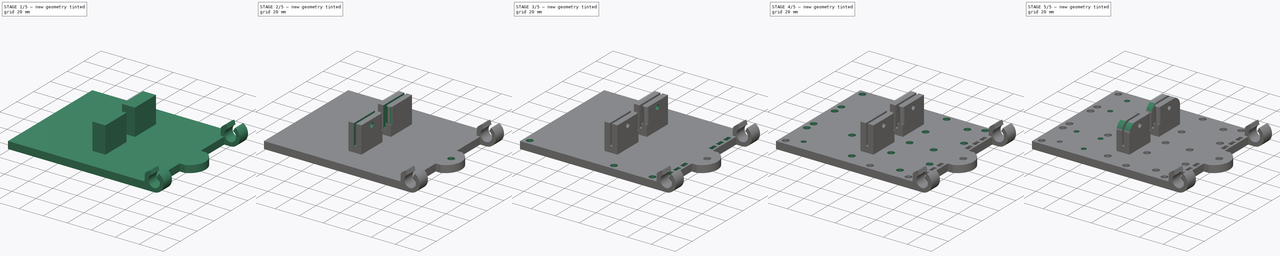
[diagram: build sequence overview — one tinted view per stage of 5, left to right]
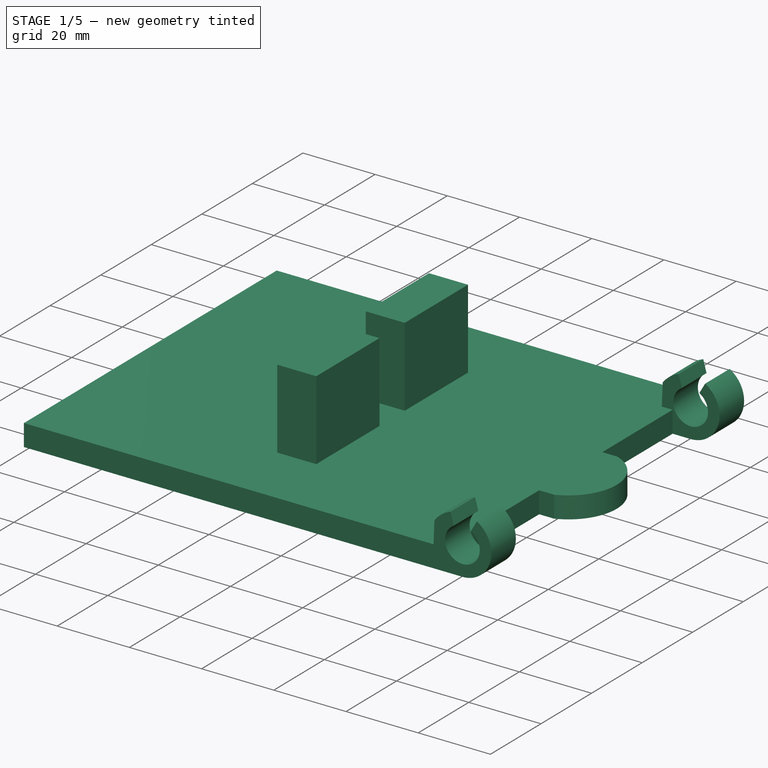
[diagram: stage 1 of 5 — iso view after this stage's code; geometry added in this stage tinted green]
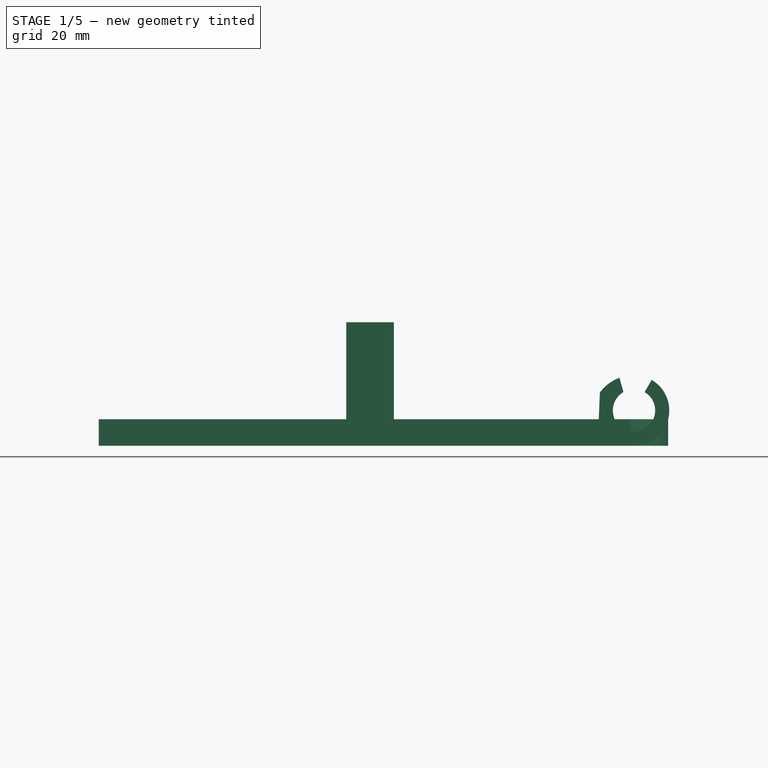
[diagram: stage 1 of 5 — front view after this stage's code; geometry added in this stage tinted green]
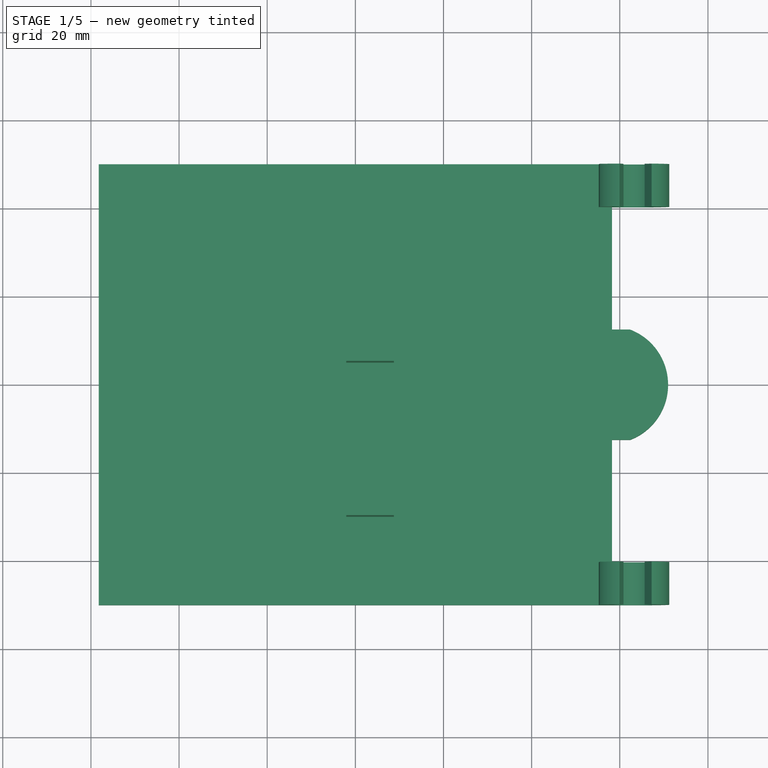
[diagram: stage 1 of 5 — top view after this stage's code; geometry added in this stage tinted green]
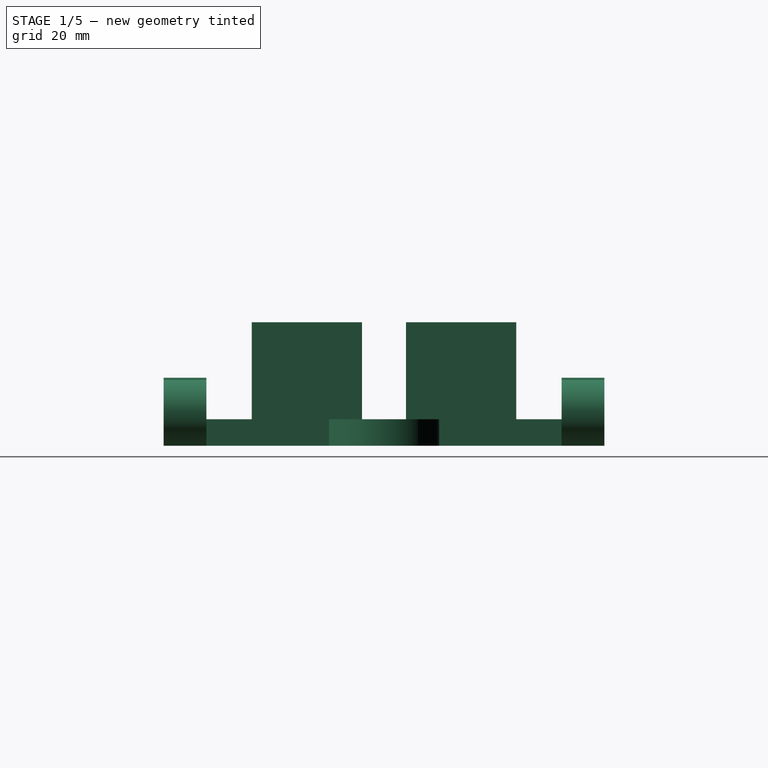
[diagram: stage 1 of 5 — right view after this stage's code; geometry added in this stage tinted green]
FCSTD DOCUMENT
Label: X_Carriage
objects: Sketcher::SketchObject×15, PartDesign::Pocket×12, PartDesign::Mirrored×11, PartDesign::LinearPattern×5, PartDesign::MultiTransform×4, PartDesign::Pad×3, Part::Feature×1
note: 66 computed .brp shape members not serialized (recipe doc carries the construction recipe); baked Part::Feature solids carry a one-line shape summary decoded from their .brp

FEATURE [Sketcher::SketchObject] Sketch
  sketch-geometry (9):
    g0: LineSegment StartX=-58.23 StartY=-50 StartZ=0 EndX=58.23 EndY=-50 EndZ=0
    g1: LineSegment StartX=58.23 StartY=-50 StartZ=0 EndX=58.23 EndY=-12.5 EndZ=0
    g2: LineSegment StartX=58.23 StartY=50 StartZ=0 EndX=-58.23 EndY=50 EndZ=0
    g3: LineSegment StartX=-58.23 StartY=50 StartZ=0 EndX=-58.23 EndY=-50 EndZ=0
    g4: GeomPoint [constr] X=0 Y=0 Z=0
    g5: LineSegment StartX=58.23 StartY=12.5 StartZ=0 EndX=62.345 EndY=12.5 EndZ=0
    g6: LineSegment StartX=62.345 StartY=-12.5 StartZ=0 EndX=58.23 EndY=-12.5 EndZ=0
    g7: ArcOfCircle CenterX=57.584 CenterY=0 CenterZ=0 NormalX=0 NormalY=0 NormalZ=1 Radius=13.376 StartAngle=5.07631 EndAngle=7.49006
    g8: LineSegment StartX=58.23 StartY=12.5 StartZ=0 EndX=58.23 EndY=50 EndZ=0
  constraints (24):
    c: Coincident(g0,g1)
    c: Coincident(g8,g2)
    c: Coincident(g2,g3)
    c: Coincident(g3,g0)
    c: Horizontal(g0)
    c: Horizontal(g2)
    c: Vertical(g1)
    c: Vertical(g3)
    c: Symmetric(g0,g8,g4)
    c: Coincident(g4,g-1)
    c: DistanceY(g3) = -100
    c: Horizontal(g5)
    c: Horizontal(g6)
    c: PointOnObject(g7,g-1)
    c: Coincident(g7,g5)
    c: Coincident(g7,g6)
    c: Coincident(g1,g6)
    c: Coincident(g8,g5)
    c: Tangent(g1,g8)
    c: DistanceX(g0) = 116.46
    c: DistanceX(g6) = -4.115
    c: Equal(g6,g5)
    c: Radius(g7) = 13.376
    c: DistanceY(g1,g5) = 25
FEATURE [PartDesign::Pad] Pad
  Length = 6
  Length2 = 100
  Sketch = -> Sketch
  Type = 0
FEATURE [Sketcher::SketchObject] Sketch001
  ExternalGeometry = -> [Pad]
  Placement = pos=(0,-50,0) rot=(1,0,0;1.5708rad)
  Support = -> Pad [Face2]
  sketch-geometry (10):
    g0: LineSegment StartX=55.4856 StartY=12.098 StartZ=0 EndX=54.9785 EndY=0 EndZ=0
    g1: LineSegment StartX=54.9785 StartY=0 StartZ=0 EndX=63.23 EndY=0 EndZ=0
    g2: ArcOfCircle CenterX=63.23 CenterY=8 CenterZ=0 NormalX=0 NormalY=0 NormalZ=1 Radius=8 StartAngle=4.71239 EndAngle=7.33038
    g3: LineSegment StartX=67.23 StartY=14.9282 StartZ=0 EndX=65.63 EndY=12.1569 EndZ=0
    g4: ArcOfCircle CenterX=63.23 CenterY=8 CenterZ=0 NormalX=0 NormalY=0 NormalZ=1 Radius=4.8 StartAngle=2.0944 EndAngle=7.33038
    g5: ArcOfCircle CenterX=63.2324 CenterY=6.35907 CenterZ=0 NormalX=0 NormalY=0 NormalZ=1 Radius=9.641 StartAngle=1.92097 EndAngle=2.504
    g6: LineSegment StartX=59.925 StartY=15.415 StartZ=0 EndX=60.83 EndY=12.1569 EndZ=0
    g7: LineSegment [constr] StartX=60.83 StartY=12.1569 StartZ=0 EndX=63.23 EndY=8 EndZ=0
    g8: LineSegment [constr] StartX=63.23 StartY=8 StartZ=0 EndX=65.63 EndY=12.1569 EndZ=0
    g9: GeomPoint [constr] X=55.23 Y=6 Z=0
  constraints (28):
    c: Tangent(g1,g2)
    c: Perpendicular(g2,g3)
    c: Radius(g2) = 8
    c: Coincident(g4,g2)
    c: Radius(g4) = 4.8
    c: Coincident(g5,g6)
    c: PointOnObject(g7,g4)
    c: Radius(g5) = 9.641
    c: Coincident(g5,g0)
    c: Coincident(g7,g2)
    c: Coincident(g7,g8)
    c: Coincident(g4,g6)
    c: Coincident(g4,g3)
    c: Coincident(g8,g3)
    c: DistanceY(g5,g0) = -15.415
    c: PointOnObject(g0,g-4)
    c: DistanceX(g1,g-4) = -121.46
    c: DistanceX(g7) = 2.4
    c: DistanceX(g8) = 2.4
    c: Horizontal(g1)
    c: Coincident(g1,g0)
    c: Angle(g0,g-4) = 1.61268
    c: PointOnObject(g9,g0)
    c: PointOnObject(g9,g-3)
    c: DistanceX(g9,g1) = 8
    c: DistanceY(g0,g9) = -6.098
    c: DistanceX(g5,g2) = 7.305
    c: Coincident(g4,g7)
FEATURE [PartDesign::Pad] Pad001
  Length = 9.71
  Length2 = 100
  Reversed = true
  Sketch = -> Sketch001
  Type = 0
FEATURE [PartDesign::Mirrored] Mirrored
  Originals = -> [Pad001]
  StdMirrorPlane = XZ
FEATURE [Sketcher::SketchObject] Sketch002
  ExternalGeometry = -> [Mirrored]
  Placement = pos=(0,0,6) rot=(0,0,1;0rad)
  Support = -> Mirrored [Face5]
  sketch-geometry (4):
    g0: LineSegment StartX=-2.055 StartY=-30 StartZ=0 EndX=8.745 EndY=-30 EndZ=0
    g1: LineSegment StartX=8.745 StartY=-30 StartZ=0 EndX=8.745 EndY=-5 EndZ=0
    g2: LineSegment StartX=8.745 StartY=-5 StartZ=0 EndX=-2.055 EndY=-5 EndZ=0
    g3: LineSegment StartX=-2.055 StartY=-5 StartZ=0 EndX=-2.055 EndY=-30 EndZ=0
  constraints (12):
    c: Coincident(g0,g1)
    c: Coincident(g1,g2)
    c: Coincident(g2,g3)
    c: Coincident(g3,g0)
    c: Horizontal(g0)
    c: Horizontal(g2)
    c: Vertical(g1)
    c: Vertical(g3)
    c: DistanceY(g1) = 25
    c: DistanceX(g2) = -10.8
    c: DistanceY(g0,g-3) = -20
    c: DistanceX(g0,g-3) = -56.175
FEATURE [PartDesign::Pad] Pad002
  Length = 22
  Length2 = 100
  Sketch = -> Sketch002
  Type = 0
FEATURE [PartDesign::Mirrored] Mirrored001
  Originals = -> [Pad002]
  StdMirrorPlane = XZ
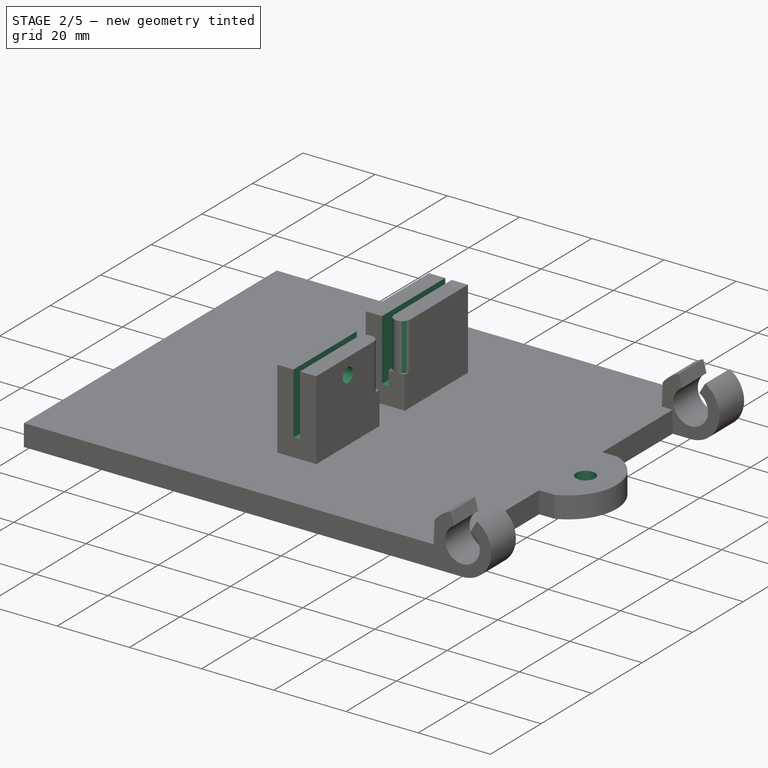
[diagram: stage 2 of 5 — iso view after this stage's code; geometry added in this stage tinted green]
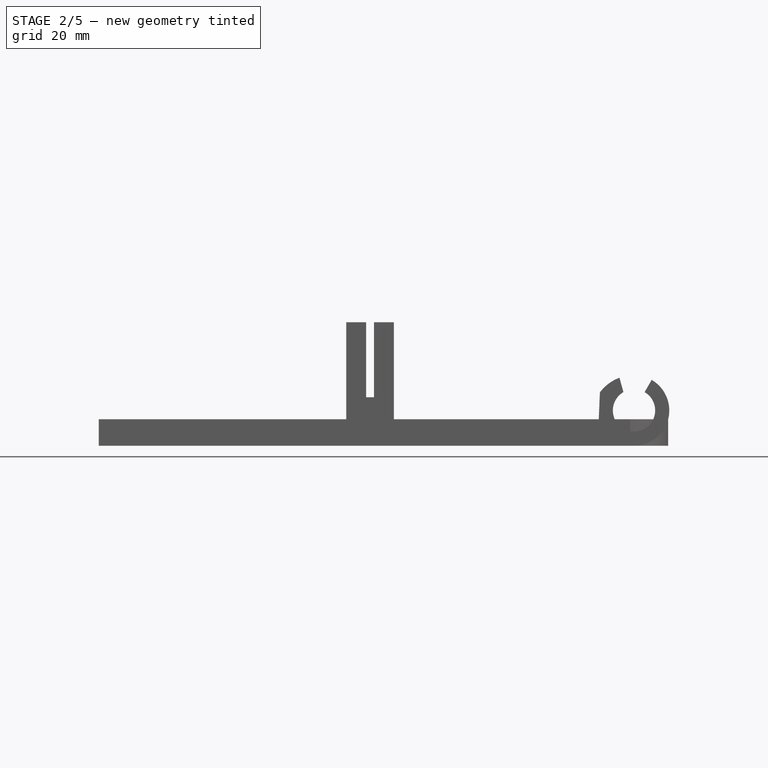
[diagram: stage 2 of 5 — front view after this stage's code; geometry added in this stage tinted green]
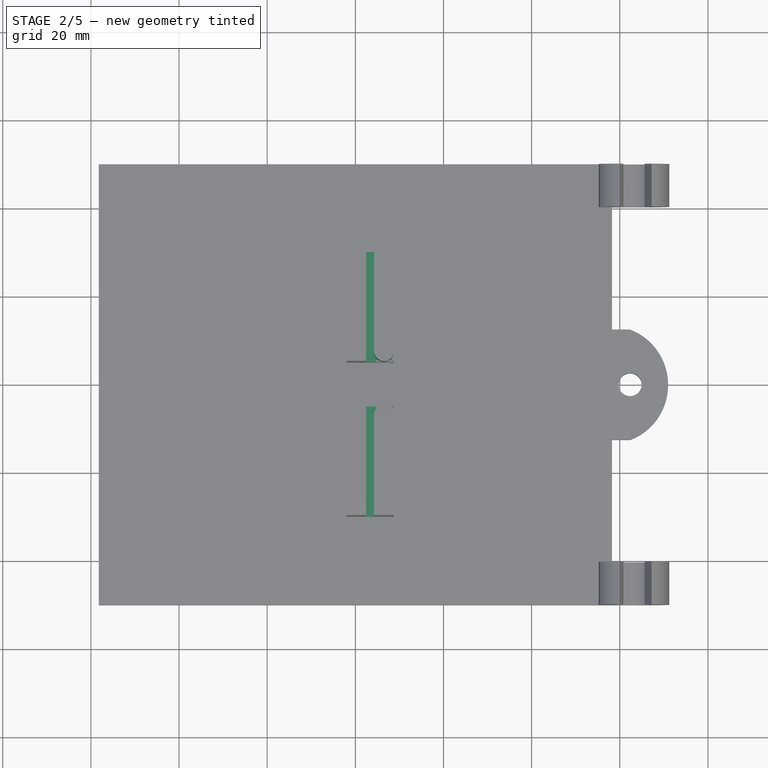
[diagram: stage 2 of 5 — top view after this stage's code; geometry added in this stage tinted green]
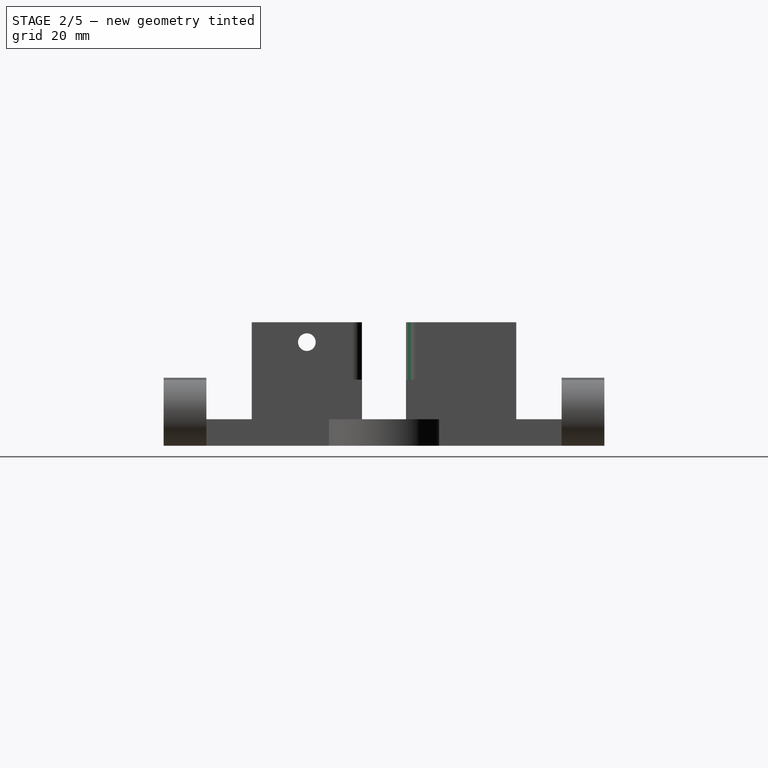
[diagram: stage 2 of 5 — right view after this stage's code; geometry added in this stage tinted green]
FEATURE [Sketcher::SketchObject] Sketch011  label="Sketch003"
  ExternalGeometry = -> [Mirrored001]
  Placement = pos=(0,-30,0) rot=(1,0,0;1.5708rad)
  Support = -> Mirrored001 [Face25]
  sketch-geometry (4):
    g0: LineSegment StartX=2.445 StartY=29 StartZ=0 EndX=4.245 EndY=29 EndZ=0
    g1: LineSegment StartX=4.245 StartY=29 StartZ=0 EndX=4.245 EndY=11 EndZ=0
    g2: LineSegment StartX=4.245 StartY=11 StartZ=0 EndX=2.445 EndY=11 EndZ=0
    g3: LineSegment StartX=2.445 StartY=11 StartZ=0 EndX=2.445 EndY=29 EndZ=0
  constraints (12):
    c: Coincident(g0,g1)
    c: Coincident(g1,g2)
    c: Coincident(g2,g3)
    c: Coincident(g3,g0)
    c: Horizontal(g0)
    c: Horizontal(g2)
    c: Vertical(g1)
    c: Vertical(g3)
    c: DistanceX(g0) = 1.8
    c: DistanceY(g2,g-4) = -5
    c: DistanceX(g-4,g0) = 4.5
    c: DistanceY(g0,g-3) = -1
FEATURE [PartDesign::Pocket] Pocket
  Length = 5
  Sketch = -> Sketch011
  Type = 1
FEATURE [Sketcher::SketchObject] Sketch012  label="Sketch004"
  ExternalGeometry = -> [Pocket]
  Placement = pos=(0,0,28) rot=(0,0,1;0rad)
  Support = -> Pocket [Face47]
  sketch-geometry (6):
    g0: LineSegment StartX=3.245 StartY=-4 StartZ=0 EndX=9.745 EndY=-4 EndZ=0
    g1: LineSegment StartX=9.745 StartY=-4 StartZ=0 EndX=9.745 EndY=-7.25 EndZ=0
    g2: LineSegment StartX=9.745 StartY=-7.25 StartZ=0 EndX=8.745 EndY=-7.25 EndZ=0
    g3: LineSegment StartX=3.245 StartY=-7.25 StartZ=0 EndX=3.245 EndY=-4 EndZ=0
    g4: ArcOfCircle CenterX=6.495 CenterY=-7.25 CenterZ=0 NormalX=0 NormalY=0 NormalZ=1 Radius=2.25 StartAngle=0 EndAngle=3.14159
    g5: LineSegment StartX=4.245 StartY=-7.25 StartZ=0 EndX=3.245 EndY=-7.25 EndZ=0
  constraints (18):
    c: Coincident(g0,g1)
    c: Coincident(g1,g2)
    c: Coincident(g5,g3)
    c: Coincident(g3,g0)
    c: Horizontal(g0)
    c: Horizontal(g2)
    c: Vertical(g1)
    c: Vertical(g3)
    c: Coincident(g2,g4)
    c: Coincident(g5,g4)
    c: Tangent(g2,g5)
    c: Perpendicular(g4,g5)
    c: PointOnObject(g4,g-3)
    c: PointOnObject(g2,g-5)
    c: Tangent(g4,g-4)
    c: Equal(g5,g2)
    c: DistanceY(g0,g-5) = -1
    c: DistanceX(g0,g-4) = 1
FEATURE [PartDesign::Pocket] Pocket001
  Length = 13
  Sketch = -> Sketch012
  Type = 0
FEATURE [PartDesign::Mirrored] Mirrored002
  Originals = -> [Pocket001]
  StdMirrorPlane = XZ
FEATURE [Sketcher::SketchObject] Sketch006  label="Sketch005"
  ExternalGeometry = -> [Mirrored002]
  Placement = pos=(0,0,6) rot=(0,0,1;0rad)
  Support = -> Mirrored002 [Face5]
  sketch-geometry (2):
    g0: Circle CenterX=62.345 CenterY=0 CenterZ=0 NormalX=0 NormalY=0 NormalZ=1 Radius=2.6
    g1: LineSegment [constr] StartX=62.345 StartY=0 StartZ=0 EndX=62.345 EndY=-12.5 EndZ=0
  constraints (5):
    c: Radius(g0) = 2.6
    c: PointOnObject(g0,g-1)
    c: Coincident(g1,g0)
    c: Coincident(g1,g-3)
    c: Vertical(g1)
FEATURE [PartDesign::Pocket] Pocket002
  Length = 5
  Sketch = -> Sketch006
  Type = 1
FEATURE [Sketcher::SketchObject] Sketch007  label="Sketch006"
  ExternalGeometry = -> [Pocket002]
  Placement = pos=(8.745,0,0) rot=(0.57735,0.57735,0.57735;2.0944rad)
  Support = -> Pocket002 [Face27]
  sketch-geometry (2):
    g0: LineSegment [constr] StartX=-17.5 StartY=6 StartZ=0 EndX=-17.5 EndY=23.5 EndZ=0
    g1: Circle CenterX=-17.5 CenterY=23.5 CenterZ=0 NormalX=0 NormalY=0 NormalZ=1 Radius=2
  constraints (5):
    c: Vertical(g0)
    c: Coincident(g1,g0)
    c: Radius(g1) = 2
    c: Symmetric(g-3,g-3,g0)
    c: DistanceY(g0) = 17.5
FEATURE [PartDesign::Pocket] Pocket003
  Length = 5
  Sketch = -> Sketch007
  Type = 1
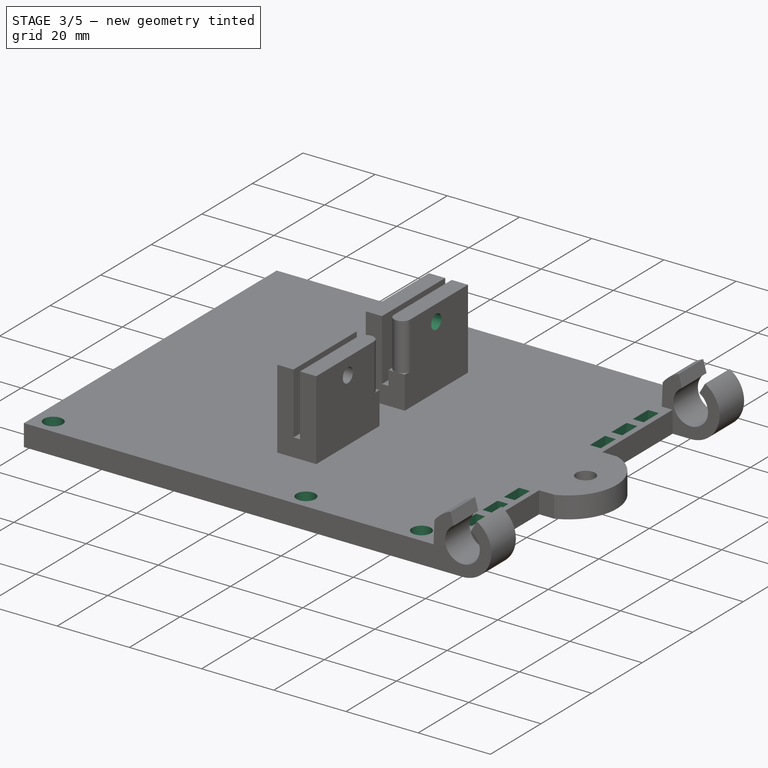
[diagram: stage 3 of 5 — iso view after this stage's code; geometry added in this stage tinted green]
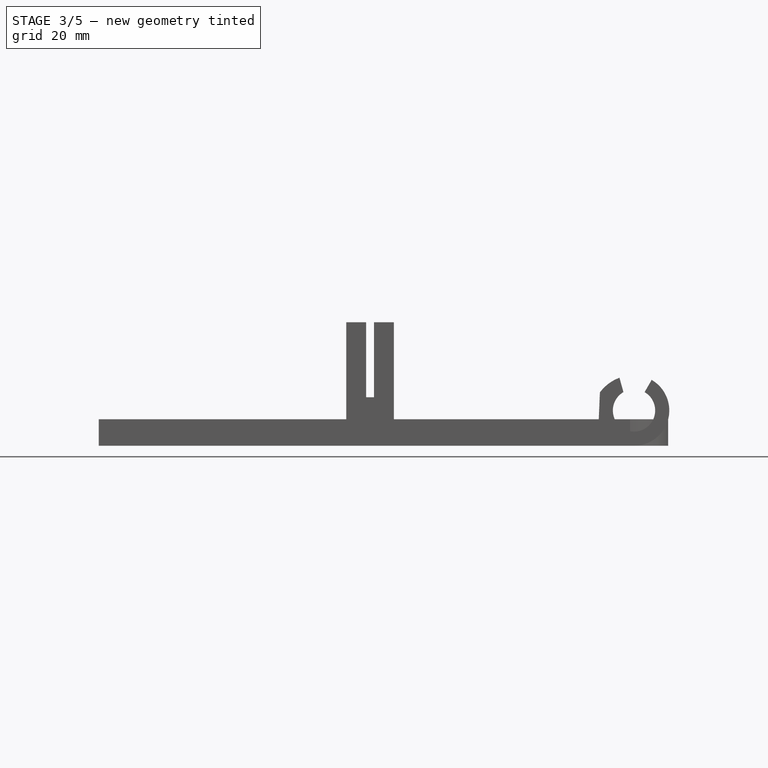
[diagram: stage 3 of 5 — front view after this stage's code; geometry added in this stage tinted green]
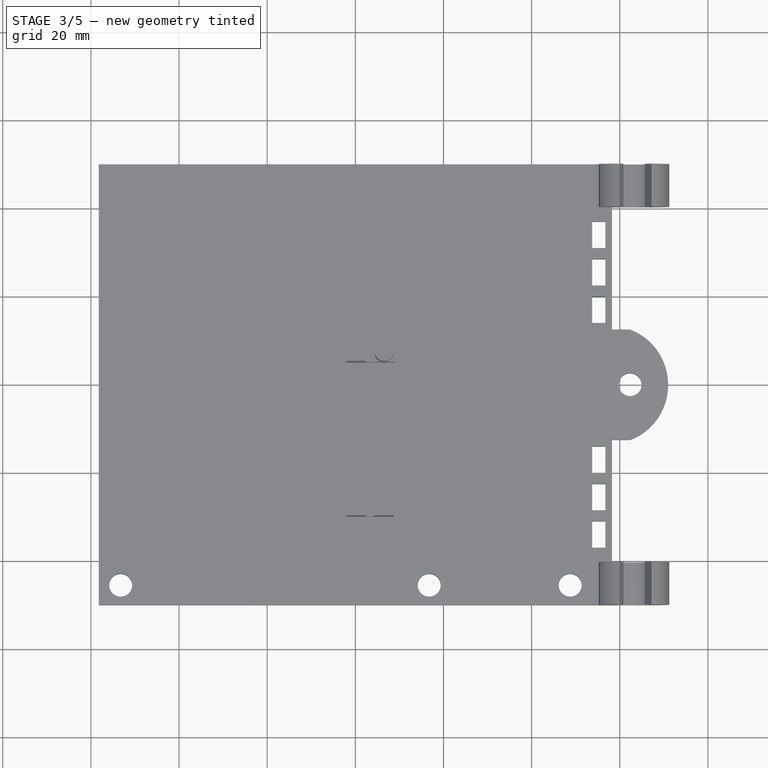
[diagram: stage 3 of 5 — top view after this stage's code; geometry added in this stage tinted green]
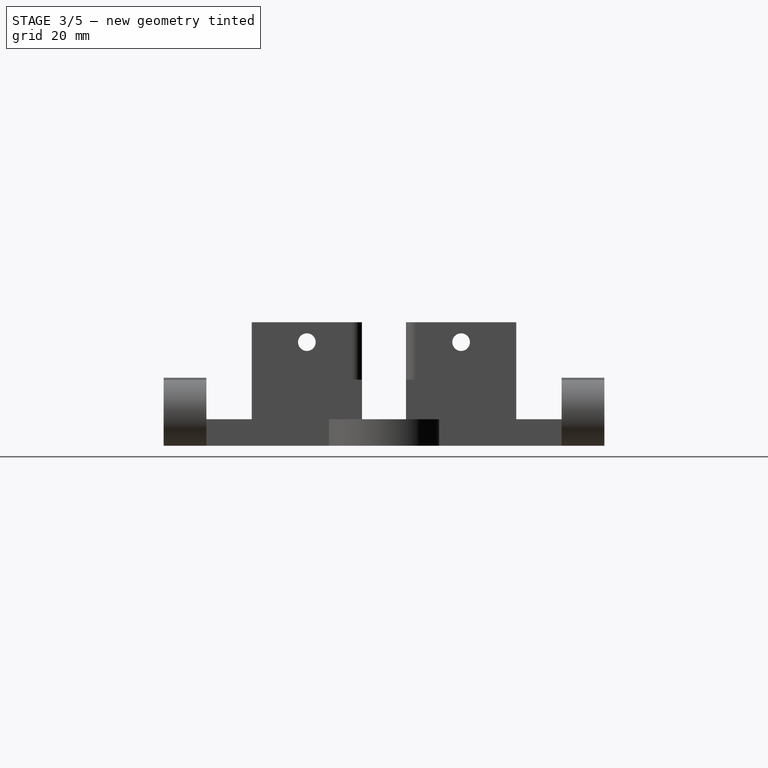
[diagram: stage 3 of 5 — right view after this stage's code; geometry added in this stage tinted green]
FEATURE [PartDesign::Mirrored] Mirrored003
  Originals = -> [Pocket003]
  StdMirrorPlane = XZ
FEATURE [Sketcher::SketchObject] Sketch013  label="Sketch007"
  ExternalGeometry = -> [Mirrored003]
  Placement = pos=(-2.055,0,0) rot=(0.57735,-0.57735,-0.57735;2.0944rad)
  Support = -> Mirrored003 [Face24]
  sketch-geometry (1):
    g0: Circle CenterX=17.5 CenterY=23.5 CenterZ=0 NormalX=0 NormalY=0 NormalZ=1 Radius=2.6
  constraints (2):
    c: Coincident(g0,g-3)
    c: Radius(g0) = 2.6
FEATURE [PartDesign::Pocket] Pocket004
  Length = 5
  Sketch = -> Sketch013
  Type = 0
FEATURE [PartDesign::Mirrored] Mirrored004
  Originals = -> [Pocket004]
  StdMirrorPlane = XZ
FEATURE [Sketcher::SketchObject] Sketch014  label="Sketch008"
  ExternalGeometry = -> [Mirrored004]
  Placement = pos=(0,0,6) rot=(0,0,1;0rad)
  Support = -> Mirrored004 [Face5]
  sketch-geometry (4):
    g0: LineSegment StartX=53.73 StartY=-14 StartZ=0 EndX=56.73 EndY=-14 EndZ=0
    g1: LineSegment StartX=56.73 StartY=-14 StartZ=0 EndX=56.73 EndY=-20 EndZ=0
    g2: LineSegment StartX=56.73 StartY=-20 StartZ=0 EndX=53.73 EndY=-20 EndZ=0
    g3: LineSegment StartX=53.73 StartY=-20 StartZ=0 EndX=53.73 EndY=-14 EndZ=0
  constraints (12):
    c: Coincident(g0,g1)
    c: Coincident(g1,g2)
    c: Coincident(g2,g3)
    c: Coincident(g3,g0)
    c: Horizontal(g0)
    c: Horizontal(g2)
    c: Vertical(g1)
    c: Vertical(g3)
    c: DistanceY(g1) = -6
    c: DistanceX(g0) = 3
    c: DistanceX(g0,g-3) = 1.5
    c: DistanceY(g0,g-3) = 1.5
FEATURE [PartDesign::Pocket] Pocket005
  Length = 5
  Sketch = -> Sketch014
  Type = 1
FEATURE [PartDesign::LinearPattern] LinearPattern
  Direction = -> Pocket005 [Edge41]
  Length = 17
  Occurrences = 3
  Reversed = true
FEATURE [PartDesign::Mirrored] Mirrored005
  StdMirrorPlane = XZ
FEATURE [PartDesign::MultiTransform] MultiTransform
  Originals = -> [Pocket005]
  Transformations = -> [LinearPattern,Mirrored005]
FEATURE [Sketcher::SketchObject] Sketch015  label="Sketch009"
  ExternalGeometry = -> [MultiTransform]
  Placement = pos=(0,0,6) rot=(0,0,1;0rad)
  Support = -> MultiTransform [Face5]
  sketch-geometry (5):
    g0: LineSegment [constr] StartX=-53.255 StartY=-45.5 StartZ=0 EndX=16.745 EndY=-45.5 EndZ=0
    g1: LineSegment [constr] StartX=16.745 StartY=-45.5 StartZ=0 EndX=48.745 EndY=-45.5 EndZ=0
    g2: Circle CenterX=-53.255 CenterY=-45.5 CenterZ=0 NormalX=0 NormalY=0 NormalZ=1 Radius=2.6
    g3: Circle CenterX=16.745 CenterY=-45.5 CenterZ=0 NormalX=0 NormalY=0 NormalZ=1 Radius=2.6
    g4: Circle CenterX=48.745 CenterY=-45.5 CenterZ=0 NormalX=0 NormalY=0 NormalZ=1 Radius=2.6
  constraints (13):
    c: Horizontal(g0)
    c: Coincident(g0,g1)
    c: Horizontal(g1)
    c: DistanceX(g0) = 70
    c: DistanceX(g1) = 32
    c: DistanceY(g-3,g0) = 4.5
    c: DistanceX(g-3,g0) = 4.975
    c: Coincident(g2,g0)
    c: Coincident(g3,g0)
    c: Coincident(g4,g1)
    c: Equal(g2,g3)
    c: Equal(g3,g4)
    c: Radius(g3) = 2.6
FEATURE [PartDesign::Pocket] Pocket006
  Length = 5
  Sketch = -> Sketch015
  Type = 1
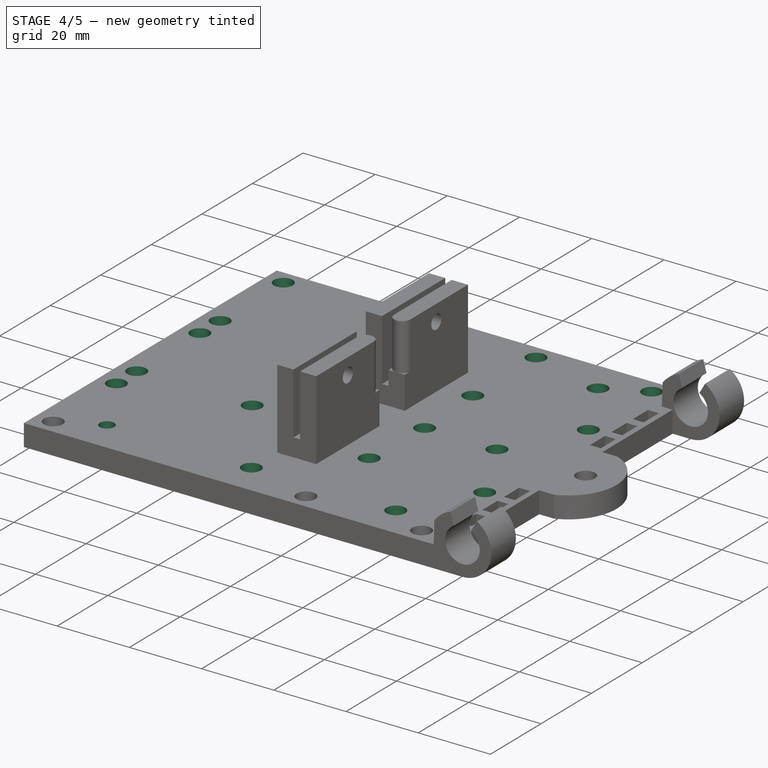
[diagram: stage 4 of 5 — iso view after this stage's code; geometry added in this stage tinted green]
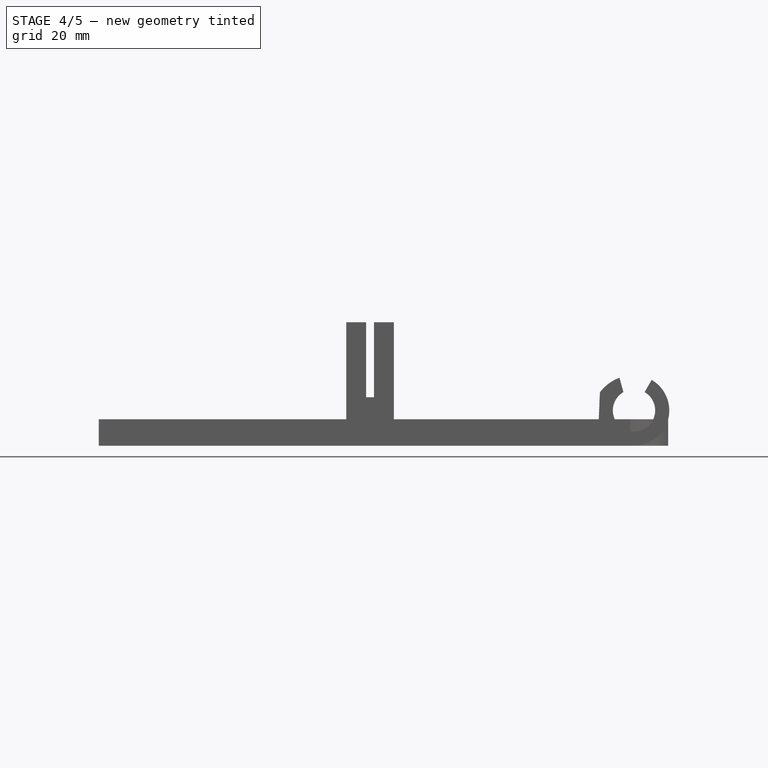
[diagram: stage 4 of 5 — front view after this stage's code; geometry added in this stage tinted green]
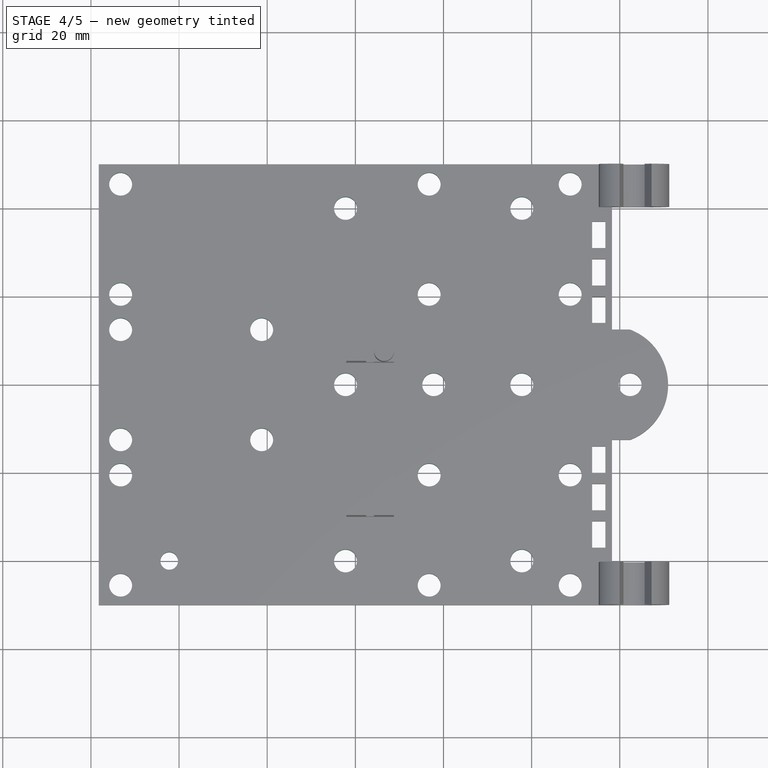
[diagram: stage 4 of 5 — top view after this stage's code; geometry added in this stage tinted green]
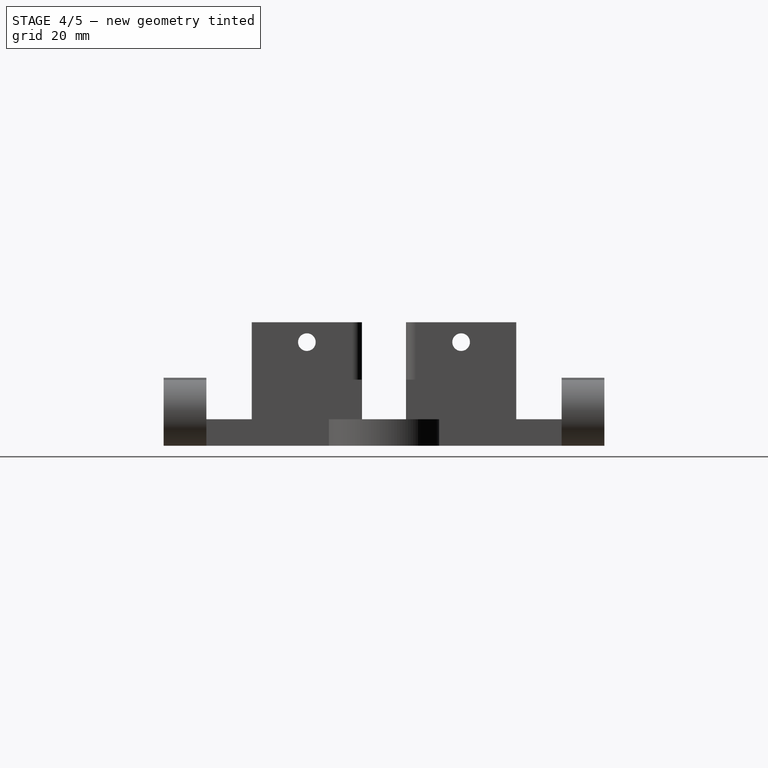
[diagram: stage 4 of 5 — right view after this stage's code; geometry added in this stage tinted green]
FEATURE [PartDesign::LinearPattern] LinearPattern001
  Direction = -> Pocket006 [Edge4]
  Length = 25
  Occurrences = 2
  Reversed = true
FEATURE [PartDesign::Mirrored] Mirrored006
  StdMirrorPlane = XZ
FEATURE [PartDesign::MultiTransform] MultiTransform001
  Originals = -> [Pocket006]
  Transformations = -> [LinearPattern001,Mirrored006]
FEATURE [Sketcher::SketchObject] Sketch016  label="Sketch010"
  ExternalGeometry = -> [MultiTransform001]
  Placement = pos=(0,0,6) rot=(0,0,1;0rad)
  Support = -> MultiTransform001 [Face5]
  sketch-geometry (2):
    g0: LineSegment [constr] StartX=-53.255 StartY=-20.5 StartZ=0 EndX=-53.255 EndY=-12.5 EndZ=0
    g1: Circle CenterX=-53.255 CenterY=-12.5 CenterZ=0 NormalX=0 NormalY=0 NormalZ=1 Radius=2.6
  constraints (5):
    c: Coincident(g0,g-3)
    c: Vertical(g0)
    c: Coincident(g1,g0)
    c: Equal(g-3,g1)
    c: DistanceY(g0) = -12.5
FEATURE [PartDesign::Pocket] Pocket007
  Length = 5
  Sketch = -> Sketch016
  Type = 1
FEATURE [PartDesign::LinearPattern] LinearPattern002
  Length = 32
  Occurrences = 2
  StdDirection = X
FEATURE [PartDesign::Mirrored] Mirrored007
  StdMirrorPlane = XZ
FEATURE [PartDesign::MultiTransform] MultiTransform002
  Originals = -> [Pocket007]
  Transformations = -> [LinearPattern002,Mirrored007]
FEATURE [Sketcher::SketchObject] Sketch017  label="Sketch011"
  ExternalGeometry = -> [MultiTransform002]
  Placement = pos=(0,0,6) rot=(0,0,1;0rad)
  Support = -> MultiTransform002 [Face5]
  sketch-geometry (11):
    g0: LineSegment [constr] StartX=-2.23 StartY=-40 StartZ=0 EndX=37.77 EndY=-40 EndZ=0
    g1: LineSegment [constr] StartX=37.77 StartY=-40 StartZ=0 EndX=37.77 EndY=40 EndZ=0
    g2: LineSegment [constr] StartX=37.77 StartY=40 StartZ=0 EndX=-2.23 EndY=40 EndZ=0
    g3: LineSegment [constr] StartX=-2.23 StartY=40 StartZ=0 EndX=-2.23 EndY=-40 EndZ=0
    g4: Circle CenterX=-2.23 CenterY=40 CenterZ=0 NormalX=0 NormalY=0 NormalZ=1 Radius=2.6
    g5: Circle CenterX=37.77 CenterY=40 CenterZ=0 NormalX=0 NormalY=0 NormalZ=1 Radius=2.6
    g6: Circle CenterX=37.77 CenterY=-40 CenterZ=0 NormalX=0 NormalY=0 NormalZ=1 Radius=2.6
    g7: Circle CenterX=-2.23 CenterY=-40 CenterZ=0 NormalX=0 NormalY=0 NormalZ=1 Radius=2.6
    g8: Circle CenterX=37.77 CenterY=0 CenterZ=0 NormalX=0 NormalY=0 NormalZ=1 Radius=2.6
    g9: Circle CenterX=-2.23 CenterY=0 CenterZ=0 NormalX=0 NormalY=0 NormalZ=1 Radius=2.6
    g10: Circle CenterX=17.77 CenterY=0 CenterZ=0 NormalX=0 NormalY=0 NormalZ=1 Radius=2.6
  constraints (28):
    c: Coincident(g0,g1)
    c: Coincident(g1,g2)
    c: Coincident(g2,g3)
    c: Coincident(g3,g0)
    c: Horizontal(g0)
    c: Horizontal(g2)
    c: Vertical(g1)
    c: Vertical(g3)
    c: Symmetric(g2,g0,g-1)
    c: DistanceX(g0,g-3) = -56
    c: DistanceY(g0,g-3) = -10
    c: DistanceX(g0) = 40
    c: Coincident(g4,g2)
    c: Coincident(g5,g1)
    c: Coincident(g6,g0)
    c: Coincident(g7,g0)
    c: PointOnObject(g8,g1)
    c: PointOnObject(g9,g3)
    c: Equal(g4,g5)
    c: Equal(g5,g8)
    c: Equal(g8,g10)
    c: Equal(g10,g9)
    c: Equal(g9,g7)
    c: Equal(g7,g6)
    c: Equal(g-4,g7)
    c: PointOnObject(g8,g-1)
    c: PointOnObject(g9,g-1)
    c: Symmetric(g9,g8,g10)
FEATURE [PartDesign::Pocket] Pocket008
  Length = 5
  Sketch = -> Sketch017
  Type = 1
FEATURE [Sketcher::SketchObject] Sketch018  label="Sketch012"
  ExternalGeometry = -> [Pocket008]
  Placement = pos=(0,0,6) rot=(0,0,1;0rad)
  Support = -> Pocket008 [Face5]
  sketch-geometry (2):
    g0: Circle CenterX=-42.23 CenterY=-40 CenterZ=0 NormalX=0 NormalY=0 NormalZ=1 Radius=2
    g1: LineSegment [constr] StartX=-2.23 StartY=-40 StartZ=0 EndX=-42.23 EndY=-40 EndZ=0
  constraints (5):
    c: Radius(g0) = 2
    c: DistanceX(g0,g-3) = -16
    c: Coincident(g1,g-4)
    c: Horizontal(g1)
    c: Coincident(g1,g0)
FEATURE [PartDesign::Pocket] Pocket009
  Length = 5
  Sketch = -> Sketch018
  Type = 1
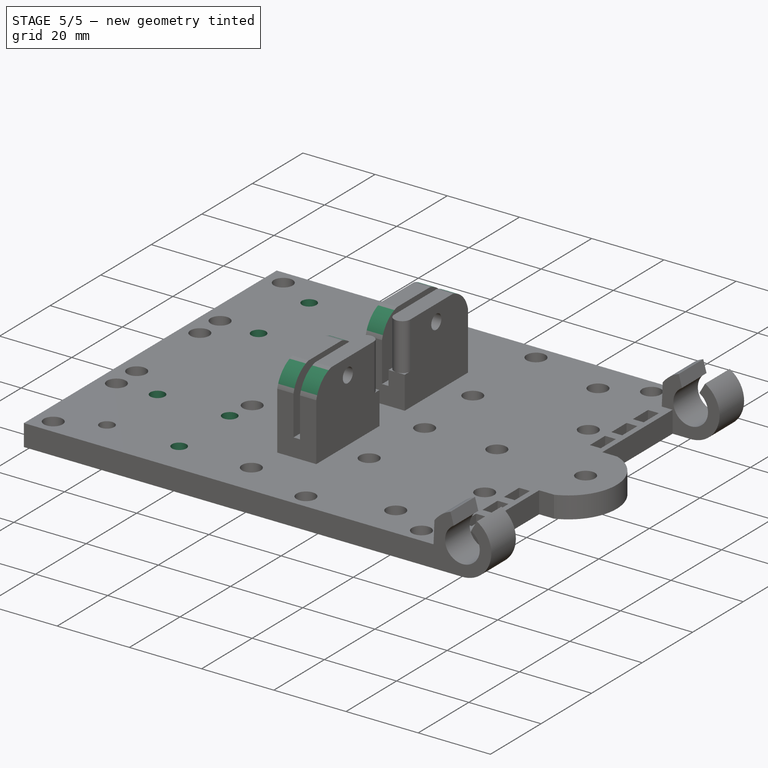
[diagram: stage 5 of 5 — iso view after this stage's code; geometry added in this stage tinted green]
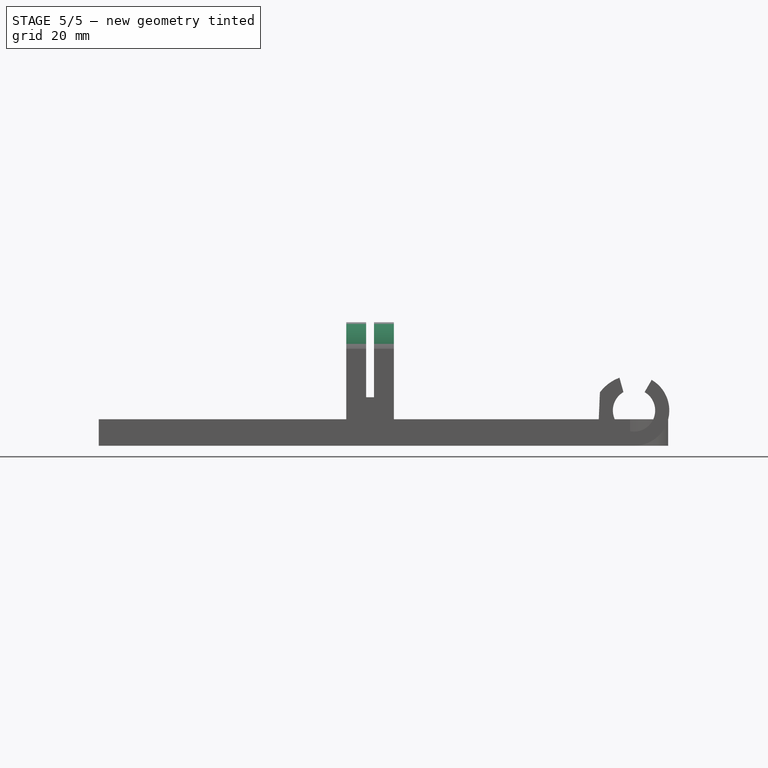
[diagram: stage 5 of 5 — front view after this stage's code; geometry added in this stage tinted green]
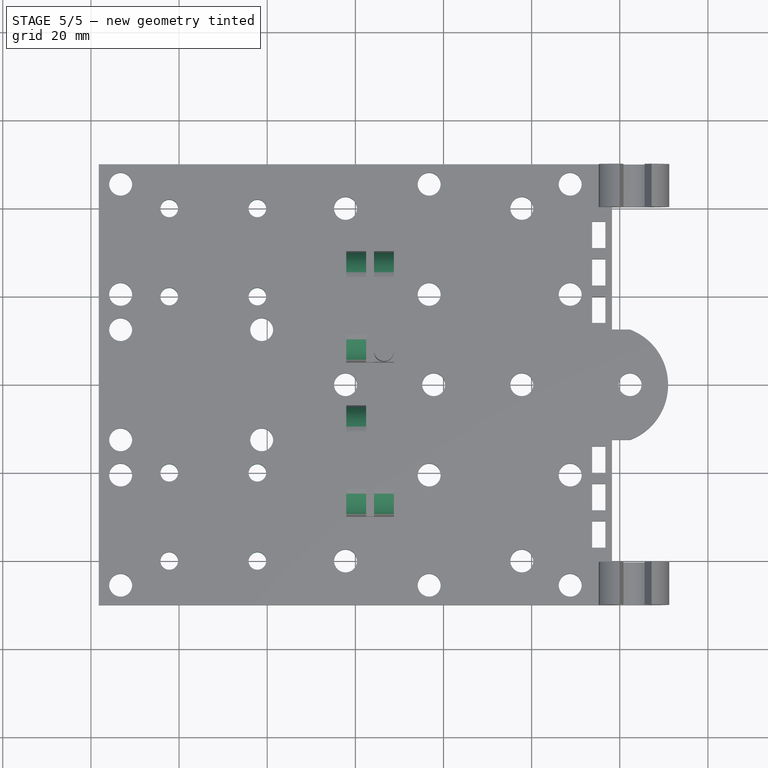
[diagram: stage 5 of 5 — top view after this stage's code; geometry added in this stage tinted green]
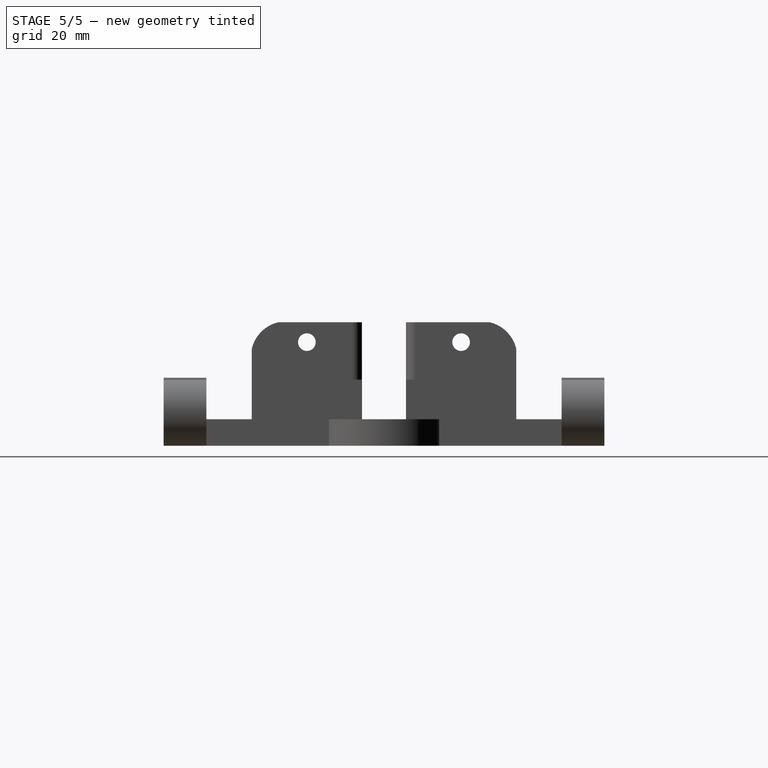
[diagram: stage 5 of 5 — right view after this stage's code; geometry added in this stage tinted green]
FEATURE [PartDesign::LinearPattern] LinearPattern003
  Length = 20
  Occurrences = 2
  StdDirection = X
FEATURE [PartDesign::LinearPattern] LinearPattern004
  Direction = -> Pocket009 [Edge4]
  Length = 20
  Occurrences = 2
  Reversed = true
FEATURE [PartDesign::Mirrored] Mirrored008
  StdMirrorPlane = XZ
FEATURE [PartDesign::MultiTransform] MultiTransform003
  Originals = -> [Pocket009]
  Transformations = -> [LinearPattern003,LinearPattern004,Mirrored008]
FEATURE [Sketcher::SketchObject] Sketch019  label="Sketch013"
  ExternalGeometry = -> [MultiTransform003]
  Placement = pos=(-2.055,0,0) rot=(0.57735,-0.57735,-0.57735;2.0944rad)
  Support = -> MultiTransform003 [Face79]
  sketch-geometry (5):
    g0: ArcOfCircle CenterX=12.879 CenterY=20.121 CenterZ=0 NormalX=0 NormalY=0 NormalZ=1 Radius=8.1 StartAngle=1.80491 EndAngle=2.90748
    g1: LineSegment StartX=4 StartY=29 StartZ=0 EndX=11 EndY=29 EndZ=0
    g2: LineSegment StartX=5 StartY=22 StartZ=0 EndX=4 EndY=22 EndZ=0
    g3: LineSegment StartX=4 StartY=22 StartZ=0 EndX=4 EndY=29 EndZ=0
    g4: LineSegment StartX=11 StartY=28 StartZ=0 EndX=11 EndY=29 EndZ=0
  constraints (16):
    c: Radius(g0) = 8.1
    c: DistanceX(g-3,g0) = 6
    c: Coincident(g2,g3)
    c: Coincident(g3,g1)
    c: Horizontal(g1)
    c: Horizontal(g2)
    c: Vertical(g3)
    c: Coincident(g2,g0)
    c: PointOnObject(g0,g-3)
    c: DistanceY(g-3,g0) = -6
    c: Coincident(g4,g0)
    c: Coincident(g4,g1)
    c: Vertical(g4)
    c: Equal(g4,g2)
    c: DistanceX(g2) = -1
    c: PointOnObject(g0,g-4)
FEATURE [PartDesign::Pocket] Pocket010
  Length = 5
  Sketch = -> Sketch019
  Type = 0
FEATURE [PartDesign::Mirrored] Mirrored009
  Originals = -> [Pocket010]
  StdMirrorPlane = XZ
FEATURE [Sketcher::SketchObject] Sketch020
  ExternalGeometry = -> [Mirrored009]
  Placement = pos=(-2.055,0,0) rot=(0.57735,-0.57735,-0.57735;2.0944rad)
  Support = -> Mirrored009 [Face79]
  sketch-geometry (6):
    g0: LineSegment StartX=24 StartY=29 StartZ=0 EndX=31 EndY=29 EndZ=0
    g1: LineSegment StartX=31 StartY=29 StartZ=0 EndX=31 EndY=22 EndZ=0
    g2: LineSegment StartX=31 StartY=22 StartZ=0 EndX=30 EndY=22 EndZ=0
    g3: LineSegment StartX=24 StartY=28 StartZ=0 EndX=24 EndY=29 EndZ=0
    g4: ArcOfCircle CenterX=22.121 CenterY=20.121 CenterZ=0 NormalX=0 NormalY=0 NormalZ=1 Radius=8.1 StartAngle=0.234113 EndAngle=1.33668
    g5: LineSegment [constr] StartX=5 StartY=22 StartZ=0 EndX=30 EndY=22 EndZ=0
  constraints (18):
    c: Coincident(g0,g1)
    c: Coincident(g1,g2)
    c: Coincident(g3,g0)
    c: Horizontal(g0)
    c: Horizontal(g2)
    c: Vertical(g1)
    c: Vertical(g3)
    c: Coincident(g3,g4)
    c: Coincident(g2,g4)
    c: PointOnObject(g3,g-4)
    c: PointOnObject(g2,g-5)
    c: Equal(g4,g-3)
    c: Equal(g2,g3)
    c: Coincident(g5,g-3)
    c: Coincident(g5,g2)
    c: Horizontal(g5)
    c: DistanceX(g0,g-5) = 6
    c: DistanceX(g2) = -1
FEATURE [PartDesign::Pocket] Pocket011
  Length = 5
  Sketch = -> Sketch020
  Type = 1
FEATURE [PartDesign::Mirrored] Mirrored010
  Originals = -> [Pocket011]
  StdMirrorPlane = XZ
FEATURE [Part::Feature] Mirrored010001  label="PartRefine"
  shape: bbox 129.5 x 100 x 28 mm, 114 faces (baked)
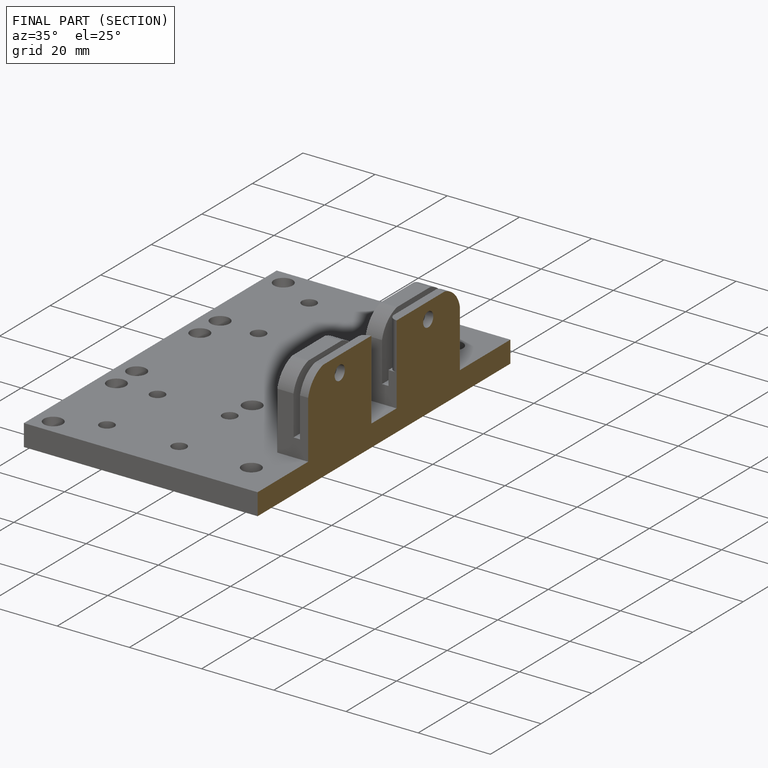
[diagram: finished part — half-section view (interior)]
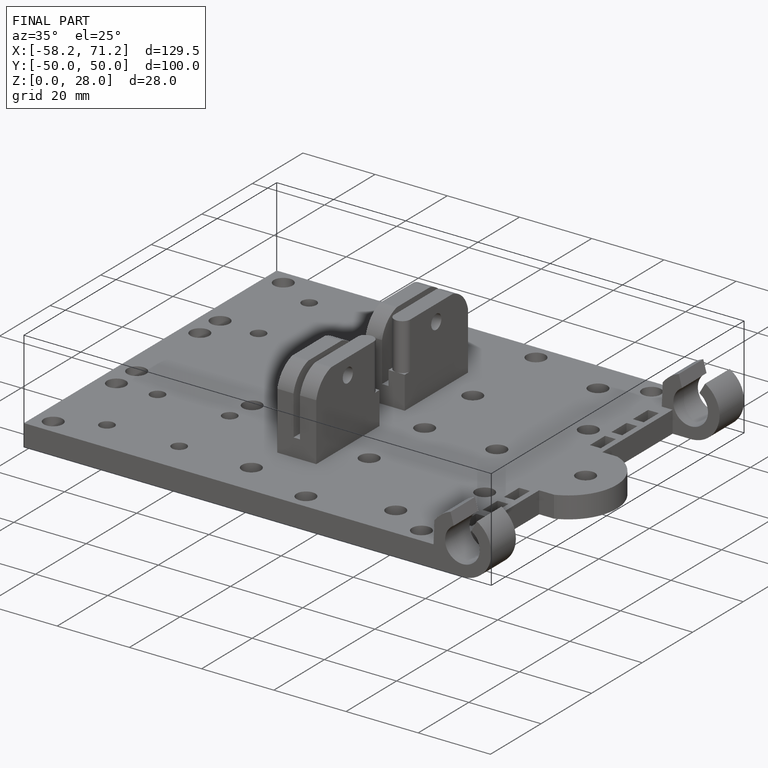
[diagram: finished part — iso view with bounding-box wireframe]
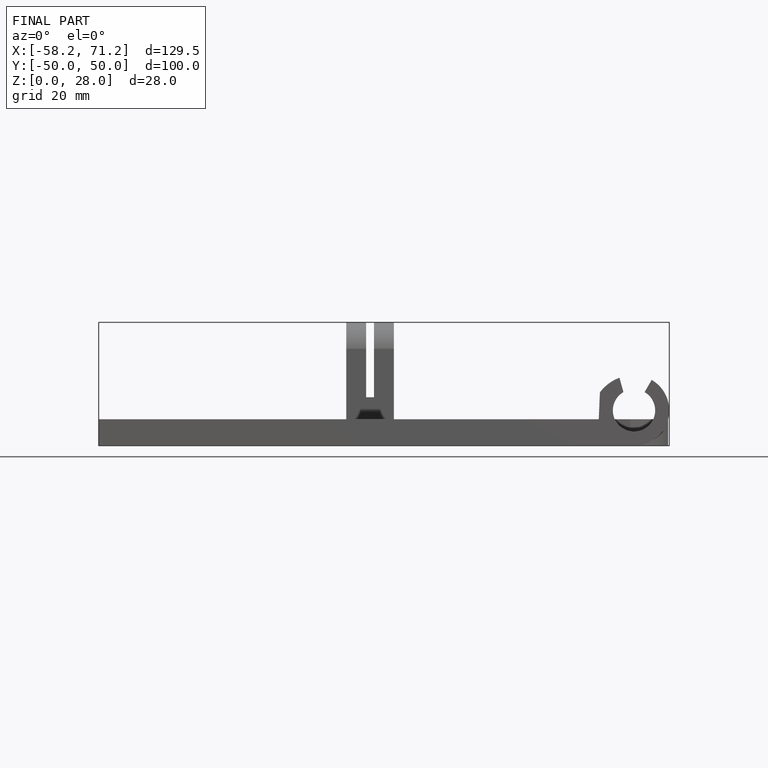
[diagram: finished part — front view with bounding-box wireframe]
